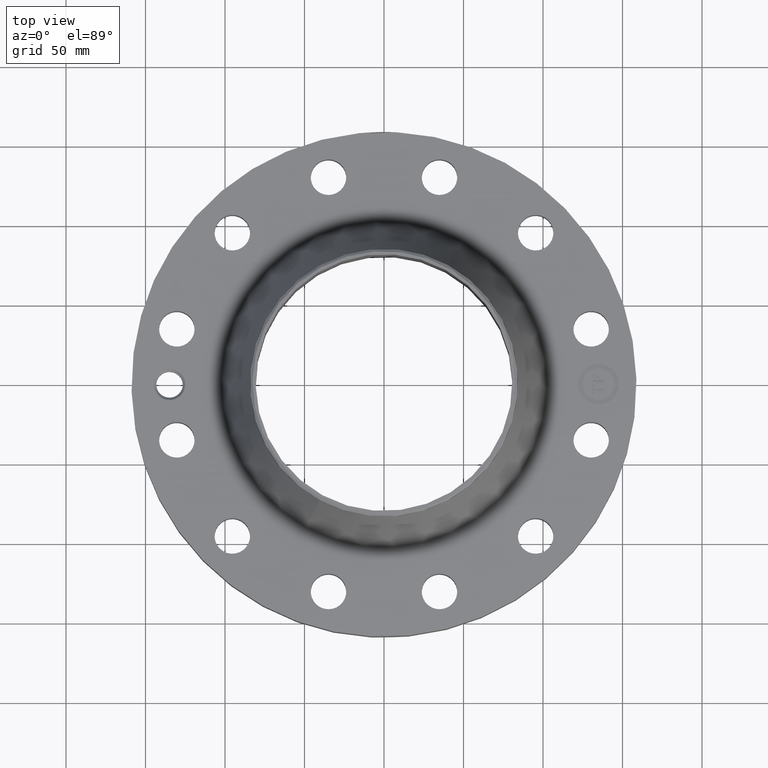
[diagram: clean part render]
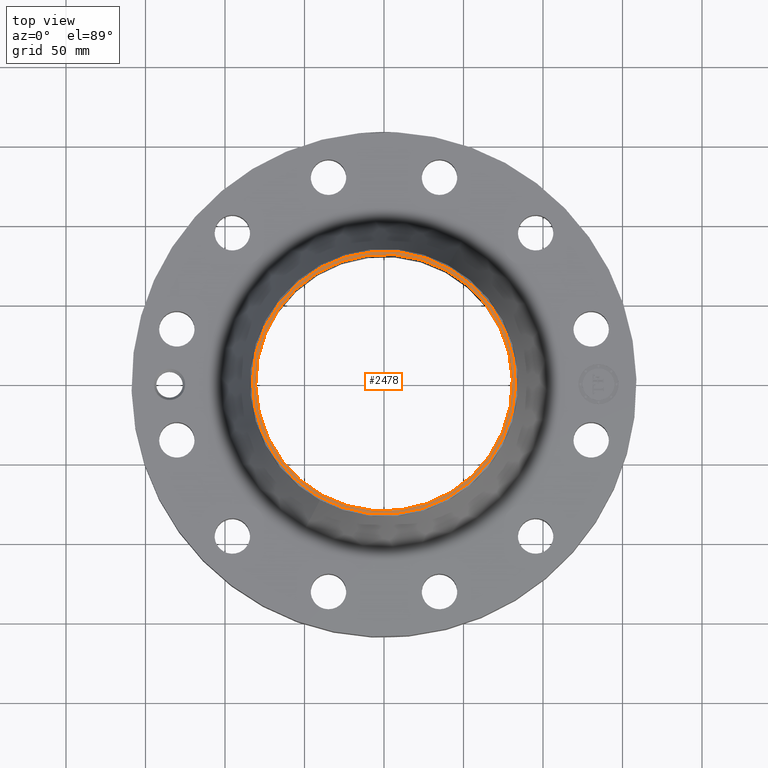
[diagram: same view with one face highlighted and labeled with its STEP entity id]
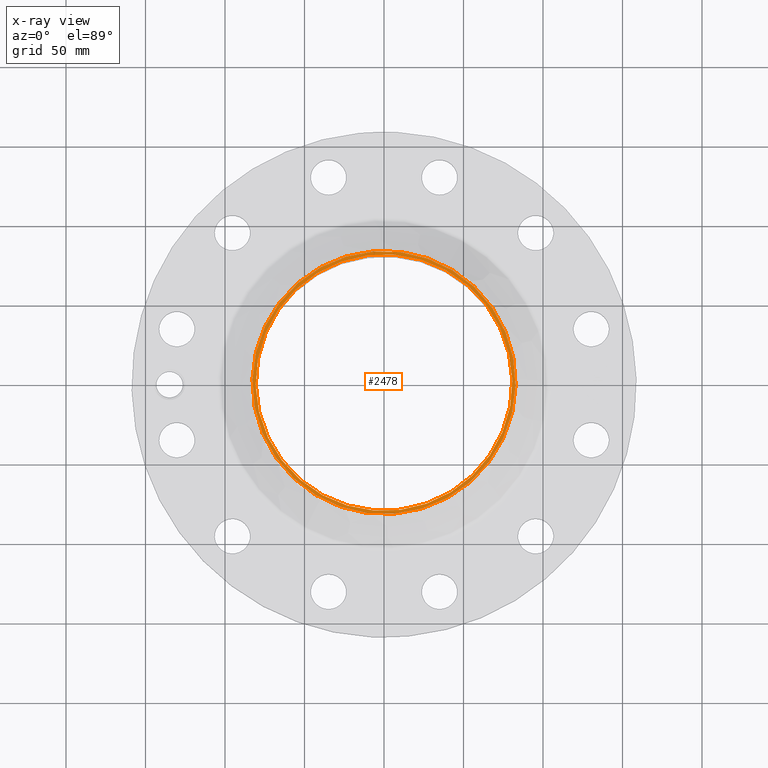
[diagram: x-ray of the same camera — body ghosted, the highlighted face saturated]
A machine part, top view. The second image highlights one B-rep face of the part: STEP entity #2478.
The next image is the same camera in x-ray: the body ghosted, the highlighted face saturated — about 0% of this face is hidden behind the body in this view.
In plain terms, the highlighted planar face has unit normal (0, 0, -1).
Its self-contained STEP definition (entity closure, byte-faithful):
#1247=AXIS2_PLACEMENT_3D('Circle Axis2P3D',#1245,#1246,$) ;
#1315=AXIS2_PLACEMENT_3D('Circle Axis2P3D',#1313,#1314,$) ;
#2454=AXIS2_PLACEMENT_3D('Plane Axis2P3D',#2451,#2452,#2453) ;
#2458=AXIS2_PLACEMENT_3D('Circle Axis2P3D',#2456,#2457,$) ;
#2467=AXIS2_PLACEMENT_3D('Circle Axis2P3D',#2465,#2466,$) ;
#1245=CARTESIAN_POINT('Axis2P3D Location',(0.,0.,4.00000000002)) ;
#1249=CARTESIAN_POINT('Vertex',(1.52385407446,2.78939617298,4.00000000002)) ;
#1251=CARTESIAN_POINT('Vertex',(-1.52385407446,-2.78939617298,4.00000000002)) ;
#1313=CARTESIAN_POINT('Axis2P3D Location',(0.,0.,4.00000000002)) ;
#2451=CARTESIAN_POINT('Axis2P3D Location',(0.,3.31500000001,4.00000000002)) ;
#2456=CARTESIAN_POINT('Axis2P3D Location',(0.,0.,4.00000000002)) ;
#2460=CARTESIAN_POINT('Vertex',(1.56160411687,-2.8584971621,4.00000000002)) ;
#2462=CARTESIAN_POINT('Vertex',(-1.56160411687,2.8584971621,4.00000000002)) ;
#2465=CARTESIAN_POINT('Axis2P3D Location',(0.,0.,4.00000000002)) ;
#1246=DIRECTION('Axis2P3D Direction',(0.,0.,-0.0393700787402)) ;
#1314=DIRECTION('Axis2P3D Direction',(0.,0.,-0.0393700787402)) ;
#2452=DIRECTION('Axis2P3D Direction',(0.,0.,-0.0393700787402)) ;
#2453=DIRECTION('Axis2P3D XDirection',(0.0393700787402,0.,0.)) ;
#2457=DIRECTION('Axis2P3D Direction',(0.,0.,-0.0393700787402)) ;
#2466=DIRECTION('Axis2P3D Direction',(0.,0.,-0.0393700787402)) ;
#2471=ORIENTED_EDGE('',*,*,#2464,.T.) ;
#2472=ORIENTED_EDGE('',*,*,#2469,.T.) ;
#2475=ORIENTED_EDGE('',*,*,#1317,.T.) ;
#2476=ORIENTED_EDGE('',*,*,#1253,.T.) ;
#2477=FACE_BOUND('',#2474,.T.) ;
#2478=ADVANCED_FACE('PartBody',(#2473,#2477),#2455,.F.) ;
#1248=CIRCLE('generated circle',#1247,3.17850000001) ;
#1316=CIRCLE('generated circle',#1315,3.17850000001) ;
#2459=CIRCLE('generated circle',#2458,3.25724015749) ;
#2468=CIRCLE('generated circle',#2467,3.25724015749) ;
#1253=EDGE_CURVE('',#1250,#1252,#1248,.T.) ;
#1317=EDGE_CURVE('',#1252,#1250,#1316,.T.) ;
#2464=EDGE_CURVE('',#2461,#2463,#2459,.F.) ;
#2469=EDGE_CURVE('',#2463,#2461,#2468,.F.) ;
#2470=EDGE_LOOP('',(#2471,#2472)) ;
#2474=EDGE_LOOP('',(#2475,#2476)) ;
#2473=FACE_OUTER_BOUND('',#2470,.T.) ;
#2455=PLANE('',#2454) ;
#1250=VERTEX_POINT('',#1249) ;
#1252=VERTEX_POINT('',#1251) ;
#2461=VERTEX_POINT('',#2460) ;
#2463=VERTEX_POINT('',#2462) ;